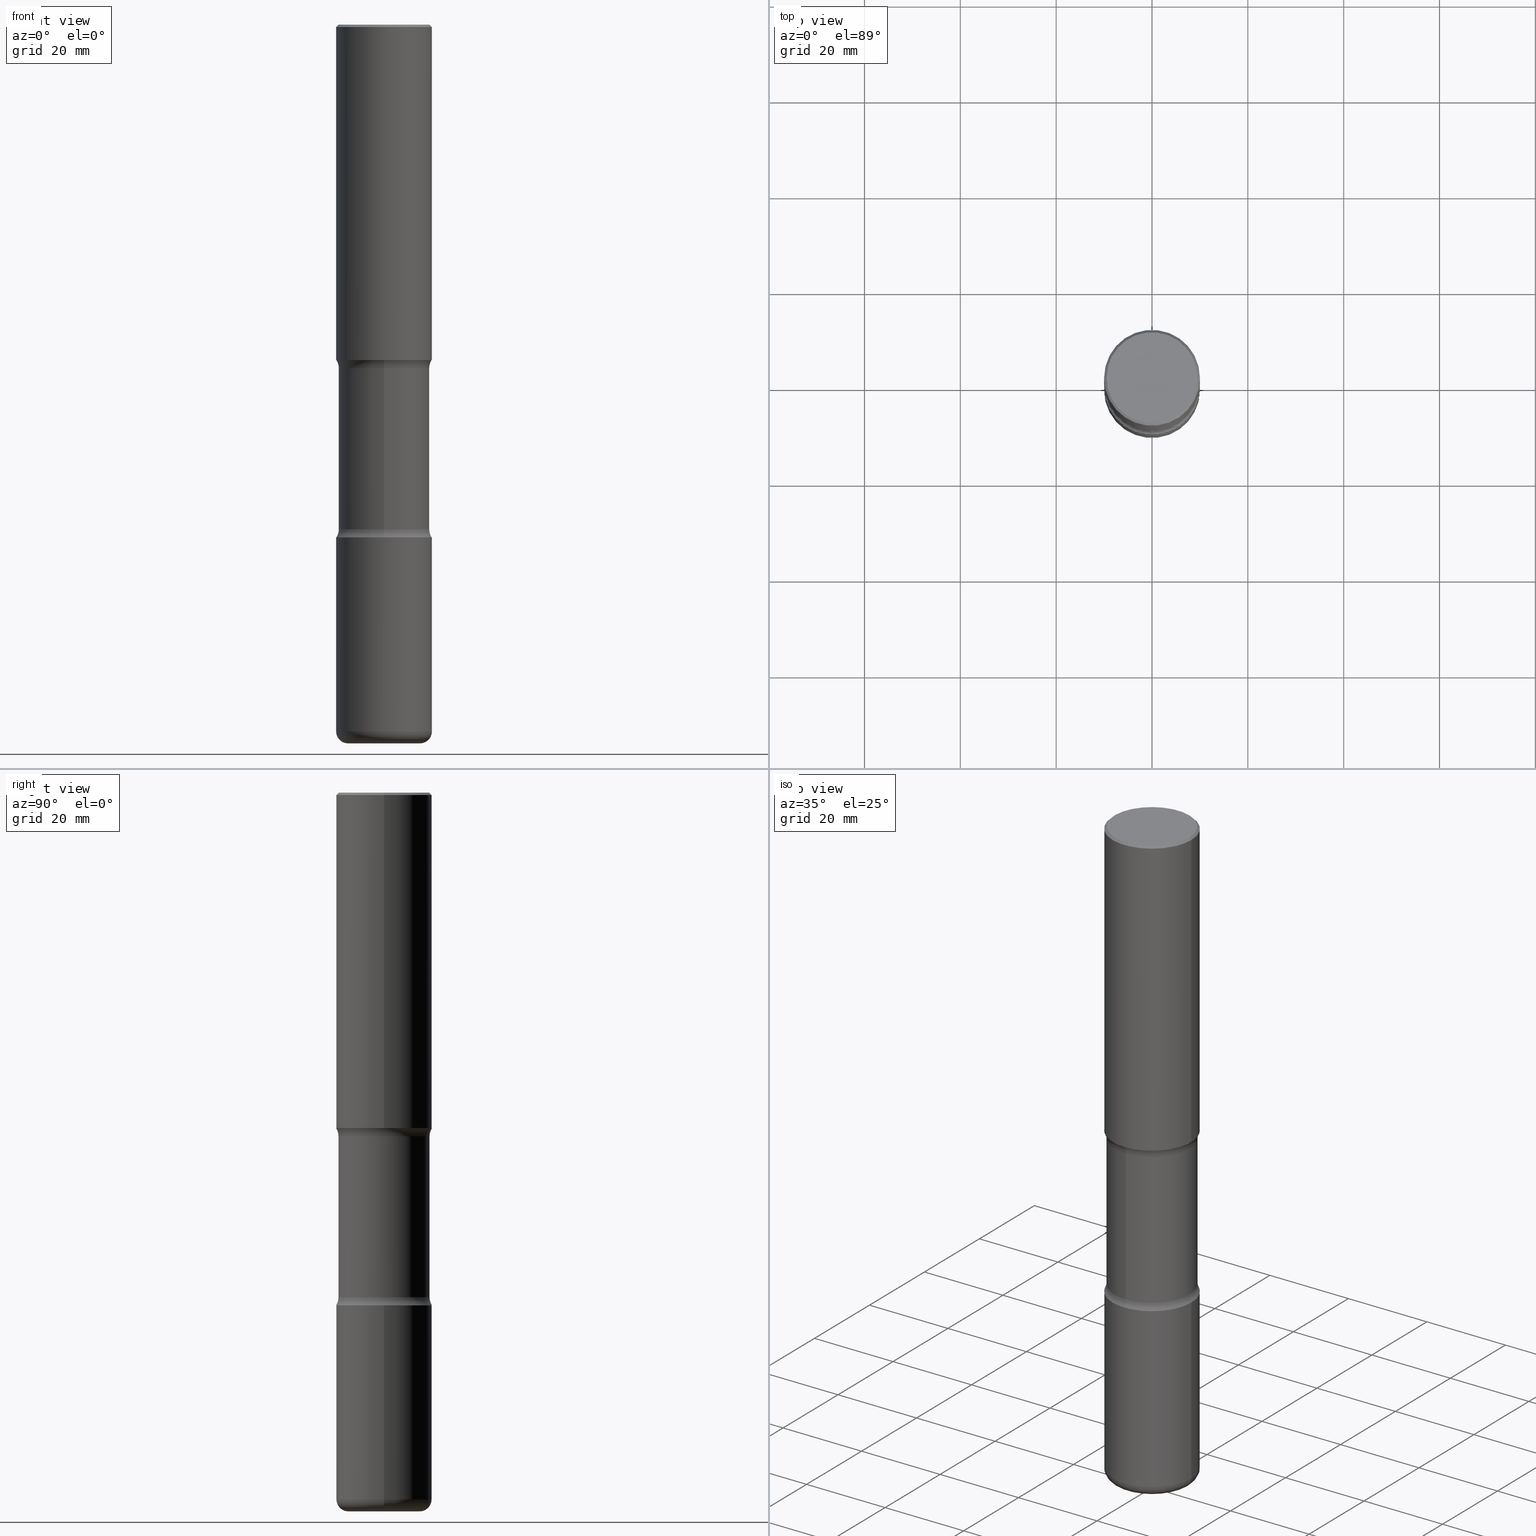
[diagram: canonical four-view strip — front | top / right | iso, engineering-drawing reading convention]
A machine part, canonical four-view strip (front | top / right | iso — engineering-drawing reading convention). The complete STEP part file that produces these views, byte-faithful:
ISO-10303-21;
HEADER;
FILE_DESCRIPTION (( 'STEP AP203' ),
    '1' );
FILE_NAME ('47754.STEP',
    '2024-03-02T08:34:32',
    ( '' ),
    ( '' ),
    'SwSTEP 2.0',
    'SolidWorks 2023',
    '' );
FILE_SCHEMA (( 'CONFIG_CONTROL_DESIGN' ));
ENDSEC;

DATA;
#1 = DIRECTION ( 'NONE',  ( 1.000000000000000000, 0.000000000000000000, 0.000000000000000000 ) ) ;
#2 = AXIS2_PLACEMENT_3D ( 'NONE', #109, #273, #453 ) ;
#3 = CARTESIAN_POINT ( 'NONE',  ( 1.013706345712835491E-28, -1.447304001658688186E-14, -4.145243411606583273 ) ) ;
#4 = LOCAL_TIME ( 3, 34, 32.00000000000000000, #137 ) ;
#5 = CARTESIAN_POINT ( 'NONE',  ( 0.000000000000000000, 0.000000000000000000, 0.000000000000000000 ) ) ;
#6 = ORIENTED_EDGE ( 'NONE', *, *, #50, .T. ) ;
#7 = MANIFOLD_SOLID_BREP ( 'Body-Move/Copy2[4]', #398 ) ;
#8 = DIRECTION ( 'NONE',  ( 2.499563752616943710E-29, -3.414014296659653741E-15, -1.000000000000000000 ) ) ;
#9 = ORIENTED_EDGE ( 'NONE', *, *, #425, .T. ) ;
#10 = DIRECTION ( 'NONE',  ( -2.445468806185136597E-29, 3.491481338843145583E-15, 1.000000000000000000 ) ) ;
#11 = FACE_OUTER_BOUND ( 'NONE', #239, .T. ) ;
#12 = CARTESIAN_POINT ( 'NONE',  ( -0.3937000000000008271, -1.747797453210850398E-14, -5.807099999999998374 ) ) ;
#13 = FACE_OUTER_BOUND ( 'NONE', #502, .T. ) ;
#14 = AXIS2_PLACEMENT_3D ( 'NONE', #162, #290, #469 ) ;
#15 = MANIFOLD_SOLID_BREP ( 'Body-Move/Copy2[1]', #244 ) ;
#16 = AXIS2_PLACEMENT_3D ( 'NONE', #368, #276, #539 ) ;
#17 = DIRECTION ( 'NONE',  ( 6.982962677686265922E-15, 1.000000000000000000, -2.775563112689113540E-15 ) ) ;
#18 = LINE ( 'NONE', #283, #190 ) ;
#19 = PRODUCT_DEFINITION ( 'UNKNOWN', '', #210, #214 ) ;
#20 = FACE_OUTER_BOUND ( 'NONE', #331, .T. ) ;
#21 = CC_DESIGN_PERSON_AND_ORGANIZATION_ASSIGNMENT ( #55, #211, ( #210 ) ) ;
#22 = FACE_OUTER_BOUND ( 'NONE', #335, .T. ) ;
#23 = AXIS2_PLACEMENT_3D ( 'NONE', #269, #218, #287 ) ;
#24 = TOROIDAL_SURFACE ( 'NONE', #277, 0.2953000000000005620, 0.09840000000000062585 ) ;
#25 = DIRECTION ( 'NONE',  ( -2.445468806185136597E-29, 3.491481338843145583E-15, 1.000000000000000000 ) ) ;
#26 = FACE_OUTER_BOUND ( 'NONE', #540, .T. ) ;
#27 = ORIENTED_EDGE ( 'NONE', *, *, #410, .T. ) ;
#28 = DIRECTION ( 'NONE',  ( 6.860497997771527618E-15, 1.000000000000000000, 0.000000000000000000 ) ) ;
#29 = DIRECTION ( 'NONE',  ( 6.982962677686265922E-15, 1.000000000000000000, -2.775563112689114723E-15 ) ) ;
#30 = EDGE_CURVE ( 'NONE', #47, #74, #317, .T. ) ;
#31 = DIRECTION ( 'NONE',  ( -1.000000000000000000, 6.982962677686266711E-15, 0.000000000000000000 ) ) ;
#32 = EDGE_LOOP ( 'NONE', ( #461, #297 ) ) ;
#33 = AXIS2_PLACEMENT_3D ( 'NONE', #248, #510, #422 ) ;
#34 = AXIS2_PLACEMENT_3D ( 'NONE', #79, #160, #421 ) ;
#35 = CARTESIAN_POINT ( 'NONE',  ( 0.000000000000000000, 0.000000000000000000, 0.000000000000000000 ) ) ;
#36 = FACE_OUTER_BOUND ( 'NONE', #207, .T. ) ;
#37 = CARTESIAN_POINT ( 'NONE',  ( 1.030178189293550378E-28, -1.470821428801063089E-14, -4.212599999999998346 ) ) ;
#38 = DIRECTION ( 'NONE',  ( 1.000000000000000000, -6.982962677686266711E-15, 4.876176775795935793E-29 ) ) ;
#39 = EDGE_LOOP ( 'NONE', ( #514, #358 ) ) ;
#40 = CARTESIAN_POINT ( 'NONE',  ( 1.013341980608738414E-28, -1.447825793226129018E-14, -4.145243411606583273 ) ) ;
#41 = APPLICATION_CONTEXT ( 'configuration controlled 3d designs of mechanical parts and assemblies' ) ;
#42 = ORIENTED_EDGE ( 'NONE', *, *, #519, .T. ) ;
#43 = ORIENTED_EDGE ( 'NONE', *, *, #105, .F. ) ;
#44 = CARTESIAN_POINT ( 'NONE',  ( -2.087702828670439639E-46, 2.980686340760894400E-32, 8.537024980200822558E-18 ) ) ;
#45 = CALENDAR_DATE ( 2024, 2, 3 ) ;
#46 = AXIS2_PLACEMENT_3D ( 'NONE', #412, #403, #182 ) ;
#47 = VERTEX_POINT ( 'NONE', #451 ) ;
#48 = ORIENTED_EDGE ( 'NONE', *, *, #536, .F. ) ;
#49 = PERSON_AND_ORGANIZATION ( #393, #492 ) ;
#50 = EDGE_CURVE ( 'NONE', #549, #230, #387, .T. ) ;
#51 = DIRECTION ( 'NONE',  ( 6.982962677686266711E-15, 1.000000000000000000, -2.921762560068729411E-15 ) ) ;
#52 = EDGE_LOOP ( 'NONE', ( #546, #126, #188, #158 ) ) ;
#53 = DIRECTION ( 'NONE',  ( 0.000000000000000000, 0.000000000000000000, 1.000000000000000000 ) ) ;
#54 = CARTESIAN_POINT ( 'NONE',  ( 6.660667374498401538E-29, -9.735019662066511300E-15, -2.755899999999998240 ) ) ;
#55 = PERSON_AND_ORGANIZATION ( #393, #492 ) ;
#56 = CIRCLE ( 'NONE', #488, 0.3937000000000004385 ) ;
#57 = LOCAL_TIME ( 3, 34, 32.00000000000000000, #299 ) ;
#58 = VERTEX_POINT ( 'NONE', #404 ) ;
#59 = ADVANCED_FACE ( 'NONE', ( #22 ), #106, .F. ) ;
#60 = CYLINDRICAL_SURFACE ( 'NONE', #90, 0.3937000000000001054 ) ;
#61 = DIRECTION ( 'NONE',  ( 1.000000000000000000, -6.982962677686265133E-15, 0.000000000000000000 ) ) ;
#62 = DIRECTION ( 'NONE',  ( -2.445468806185136597E-29, 3.491481338843145583E-15, 1.000000000000000000 ) ) ;
#63 = ADVANCED_FACE ( 'NONE', ( #26 ), #281, .F. ) ;
#64 = CIRCLE ( 'NONE', #71, 0.3937000000000004940 ) ;
#65 = CARTESIAN_POINT ( 'NONE',  ( 3.484498376165515577E-15, 0.4989999999999901736, -2.823256588393415534 ) ) ;
#66 = EDGE_CURVE ( 'NONE', #280, #487, #275, .T. ) ;
#67 = CARTESIAN_POINT ( 'NONE',  ( 0.3936999999999999389, -2.770807688499514945E-15, -0.02000000000000010103 ) ) ;
#68 = FACE_OUTER_BOUND ( 'NONE', #373, .T. ) ;
#69 = ORIENTED_EDGE ( 'NONE', *, *, #419, .F. ) ;
#70 = CIRCLE ( 'NONE', #2, 0.3937000000000002164 ) ;
#71 = AXIS2_PLACEMENT_3D ( 'NONE', #78, #415, #285 ) ;
#72 = ADVANCED_FACE ( 'NONE', ( #498 ), #270, .T. ) ;
#73 = PLANE ( 'NONE',  #16 ) ;
#74 = VERTEX_POINT ( 'NONE', #535 ) ;
#75 = CARTESIAN_POINT ( 'NONE',  ( 4.890937612370298557E-31, -6.982962677686327354E-17, -0.02000000000000010103 ) ) ;
#76 = CARTESIAN_POINT ( 'NONE',  ( 0.3937000000000008271, -2.302457368900111381E-14, -5.807099999999998374 ) ) ;
#77 = ORIENTED_EDGE ( 'NONE', *, *, #105, .T. ) ;
#78 = CARTESIAN_POINT ( 'NONE',  ( 1.420108190439770332E-28, -2.027538128279602429E-14, -5.807099999999998374 ) ) ;
#79 = CARTESIAN_POINT ( 'NONE',  ( 1.013706345712835491E-28, -1.447304001658688186E-14, -4.145243411606583273 ) ) ;
#80 = DIRECTION ( 'NONE',  ( -2.445468806185136597E-29, 3.491481338843145583E-15, 1.000000000000000000 ) ) ;
#81 = ORIENTED_EDGE ( 'NONE', *, *, #312, .T. ) ;
#82 = AXIS2_PLACEMENT_3D ( 'NONE', #144, #314, #491 ) ;
#83 = CARTESIAN_POINT ( 'NONE',  ( 4.890937612370298557E-31, -6.982962677686327354E-17, -0.02000000000000010103 ) ) ;
#84 = CARTESIAN_POINT ( 'NONE',  ( 0.2953000000000005620, -2.268101192525895245E-14, -5.905499999999999972 ) ) ;
#85 = CARTESIAN_POINT ( 'NONE',  ( 2.611628041454766160E-15, 0.3739999999999856772, -4.145243411606584161 ) ) ;
#86 = ORIENTED_EDGE ( 'NONE', *, *, #541, .T. ) ;
#87 = ADVANCED_FACE ( 'NONE', ( #68 ), #438, .T. ) ;
#88 = EDGE_CURVE ( 'NONE', #74, #47, #70, .T. ) ;
#89 = PERSON_AND_ORGANIZATION ( #393, #492 ) ;
#90 = AXIS2_PLACEMENT_3D ( 'NONE', #444, #62, #147 ) ;
#91 = CIRCLE ( 'NONE', #257, 0.3740000000000001656 ) ;
#92 = CALENDAR_DATE ( 2024, 2, 3 ) ;
#93 = EDGE_LOOP ( 'NONE', ( #396, #258, #349, #48 ) ) ;
#94 = APPLICATION_PROTOCOL_DEFINITION ( 'international standard', 'config_control_design', 1994, #41 ) ;
#95 = CARTESIAN_POINT ( 'NONE',  ( -0.3936999999999999389, 2.679362779428219524E-15, -0.02000000000000010103 ) ) ;
#96 = DIRECTION ( 'NONE',  ( 1.000000000000000000, -6.982962677686266711E-15, 4.876212485538976239E-29 ) ) ;
#97 = AXIS2_PLACEMENT_3D ( 'NONE', #212, #181, #17 ) ;
#98 = LINE ( 'NONE', #235, #499 ) ;
#99 = CC_DESIGN_APPROVAL ( #153, ( #210 ) ) ;
#100 = ORIENTED_EDGE ( 'NONE', *, *, #519, .F. ) ;
#101 = ORIENTED_EDGE ( 'NONE', *, *, #208, .T. ) ;
#102 = DIRECTION ( 'NONE',  ( 2.499563752616943710E-29, -3.414014296659653741E-15, -1.000000000000000000 ) ) ;
#103 = DIRECTION ( 'NONE',  ( 6.982962677686266711E-15, 1.000000000000000000, -2.921762560068729411E-15 ) ) ;
#104 = CYLINDRICAL_SURFACE ( 'NONE', #455, 0.3740000000000001656 ) ;
#105 = EDGE_CURVE ( 'NONE', #115, #138, #427, .T. ) ;
#106 = TOROIDAL_SURFACE ( 'NONE', #141, 0.4990000000000000546, 0.1249999999999998612 ) ;
#107 = AXIS2_PLACEMENT_3D ( 'NONE', #516, #53, #1 ) ;
#108 = CARTESIAN_POINT ( 'NONE',  ( 6.739467482965614869E-29, -9.622173421717819657E-15, -2.755899999999998240 ) ) ;
#109 = CARTESIAN_POINT ( 'NONE',  ( 6.739467482965614869E-29, -9.622173421717819657E-15, -2.755899999999998240 ) ) ;
#110 = AXIS2_PLACEMENT_3D ( 'NONE', #75, #151, #495 ) ;
#111 = ORIENTED_EDGE ( 'NONE', *, *, #130, .T. ) ;
#112 = AXIS2_PLACEMENT_3D ( 'NONE', #189, #152, #29 ) ;
#113 = ADVANCED_FACE ( 'NONE', ( #11 ), #436, .T. ) ;
#114 = CARTESIAN_POINT ( 'NONE',  ( 0.3936999999999999389, -2.770807688499514945E-15, -0.02000000000000010103 ) ) ;
#115 = VERTEX_POINT ( 'NONE', #338 ) ;
#116 = CARTESIAN_POINT ( 'NONE',  ( 0.3937000000000002720, -1.745740669421571411E-14, -4.212599999999998346 ) ) ;
#117 = VERTEX_POINT ( 'NONE', #85 ) ;
#118 = DIRECTION ( 'NONE',  ( -2.445468806185136877E-29, 3.491481338843145188E-15, 1.000000000000000000 ) ) ;
#119 = CC_DESIGN_DATE_AND_TIME_ASSIGNMENT ( #348, #295, ( #19 ) ) ;
#120 = ADVANCED_FACE ( 'NONE', ( #238 ), #60, .T. ) ;
#121 = PLANE ( 'NONE',  #23 ) ;
#122 = ORIENTED_EDGE ( 'NONE', *, *, #321, .F. ) ;
#123 = CLOSED_SHELL ( 'NONE', ( #113, #87, #503, #186, #486, #120 ) ) ;
#124 = SECURITY_CLASSIFICATION ( '', '', #177 ) ;
#125 = APPROVAL_ROLE ( '' ) ;
#126 = ORIENTED_EDGE ( 'NONE', *, *, #536, .T. ) ;
#127 = PERSON_AND_ORGANIZATION_ROLE ( 'creator' ) ;
#128 = PRODUCT_DEFINITION_SHAPE ( 'NONE', 'NONE',  #19 ) ;
#129 = ORIENTED_EDGE ( 'NONE', *, *, #432, .F. ) ;
#130 = EDGE_CURVE ( 'NONE', #230, #441, #263, .T. ) ;
#131 = COORDINATED_UNIVERSAL_TIME_OFFSET ( 5, 0, .BEHIND. ) ;
#132 = DIRECTION ( 'NONE',  ( -2.445468806185136597E-29, 3.491481338843145583E-15, 1.000000000000000000 ) ) ;
#133 = AXIS2_PLACEMENT_3D ( 'NONE', #315, #494, #324 ) ;
#134 = AXIS2_PLACEMENT_3D ( 'NONE', #226, #454, #228 ) ;
#135 = APPROVAL_ROLE ( '' ) ;
#136 = DIRECTION ( 'NONE',  ( 6.982962677686265922E-15, 1.000000000000000000, -3.414014296659653741E-15 ) ) ;
#137 = COORDINATED_UNIVERSAL_TIME_OFFSET ( 5, 0, .BEHIND. ) ;
#138 = VERTEX_POINT ( 'NONE', #316 ) ;
#139 = ORIENTED_EDGE ( 'NONE', *, *, #50, .F. ) ;
#140 = ADVANCED_FACE ( 'NONE', ( #395 ), #104, .T. ) ;
#141 = AXIS2_PLACEMENT_3D ( 'NONE', #340, #8, #332 ) ;
#142 = AXIS2_PLACEMENT_3D ( 'NONE', #40, #552, #371 ) ;
#143 = DIRECTION ( 'NONE',  ( -6.982962677686266711E-15, -1.000000000000000000, 3.491481338843145583E-15 ) ) ;
#144 = CARTESIAN_POINT ( 'NONE',  ( 6.856494937320590076E-29, -9.925643892983175518E-15, -2.823256588393414201 ) ) ;
#145 = DIRECTION ( 'NONE',  ( 2.499563752616943710E-29, -3.414014296659653741E-15, -1.000000000000000000 ) ) ;
#146 = ADVANCED_FACE ( 'NONE', ( #20 ), #306, .T. ) ;
#147 = DIRECTION ( 'NONE',  ( 1.000000000000000000, -6.982962677686266711E-15, 4.876176775795935793E-29 ) ) ;
#148 = ADVANCED_BREP_SHAPE_REPRESENTATION ( '47754', ( #15, #184, #7, #107 ), #399 ) ;
#149 = CONICAL_SURFACE ( 'NONE', #525, 0.3936999999999999389, 0.7853981633974471688 ) ;
#150 = DIRECTION ( 'NONE',  ( -2.445468806185136877E-29, 3.491481338843145188E-15, 1.000000000000000000 ) ) ;
#151 = DIRECTION ( 'NONE',  ( 2.445468806185136597E-29, -3.491481338843145583E-15, -1.000000000000000000 ) ) ;
#152 = DIRECTION ( 'NONE',  ( 2.499563752616943710E-29, -3.414014296659653741E-15, -1.000000000000000000 ) ) ;
#153 = APPROVAL ( #242, 'UNSPECIFIED' ) ;
#154 = EDGE_CURVE ( 'NONE', #418, #549, #200, .T. ) ;
#155 = ORIENTED_EDGE ( 'NONE', *, *, #88, .T. ) ;
#156 = DIRECTION ( 'NONE',  ( -1.000000000000000000, 6.982962677686265922E-15, -4.883557194083112340E-29 ) ) ;
#157 = TOROIDAL_SURFACE ( 'NONE', #301, 0.4990000000000002212, 0.1249999999999998751 ) ;
#158 = ORIENTED_EDGE ( 'NONE', *, *, #208, .F. ) ;
#159 = AXIS2_PLACEMENT_3D ( 'NONE', #365, #132, #179 ) ;
#160 = DIRECTION ( 'NONE',  ( 2.499563752616943710E-29, -3.414014296659653741E-15, -1.000000000000000000 ) ) ;
#161 = PLANE ( 'NONE',  #457 ) ;
#162 = CARTESIAN_POINT ( 'NONE',  ( 6.829029461346524548E-29, -9.964976017815853586E-15, -2.823256588393414646 ) ) ;
#163 = ORIENTED_EDGE ( 'NONE', *, *, #350, .F. ) ;
#164 = EDGE_CURVE ( 'NONE', #518, #227, #288, .T. ) ;
#165 = DIRECTION ( 'NONE',  ( -6.982962677686264344E-15, -1.000000000000000000, 0.000000000000000000 ) ) ;
#166 = EDGE_LOOP ( 'NONE', ( #284, #209 ) ) ;
#167 = AXIS2_PLACEMENT_3D ( 'NONE', #108, #352, #136 ) ;
#168 = VECTOR ( 'NONE', #150, 39.37007874015748143 ) ;
#169 = MECHANICAL_CONTEXT ( 'NONE', #231, 'mechanical' ) ;
#170 = FACE_OUTER_BOUND ( 'NONE', #505, .T. ) ;
#171 = PERSON_AND_ORGANIZATION_ROLE ( 'classification_officer' ) ;
#172 = CIRCLE ( 'NONE', #142, 0.3740000000000001656 ) ;
#173 = SHAPE_DEFINITION_REPRESENTATION ( #128, #148 ) ;
#174 = EDGE_LOOP ( 'NONE', ( #291, #409, #259, #382 ) ) ;
#175 = APPROVAL ( #357, 'UNSPECIFIED' ) ;
#176 = ADVANCED_FACE ( 'NONE', ( #513 ), #157, .F. ) ;
#177 = SECURITY_CLASSIFICATION_LEVEL ( 'unclassified' ) ;
#178 = CARTESIAN_POINT ( 'NONE',  ( 1.453329336974072664E-28, -2.048779909082575425E-14, -5.905499999999998195 ) ) ;
#179 = DIRECTION ( 'NONE',  ( 1.000000000000000000, -6.982962677686269077E-15, 0.000000000000000000 ) ) ;
#180 = AXIS2_PLACEMENT_3D ( 'NONE', #471, #240, #51 ) ;
#181 = DIRECTION ( 'NONE',  ( 2.499563752616943710E-29, -3.414014296659653741E-15, -1.000000000000000000 ) ) ;
#182 = DIRECTION ( 'NONE',  ( 1.000000000000000000, -6.982962677686266711E-15, 4.876176775795935793E-29 ) ) ;
#183 = CIRCLE ( 'NONE', #529, 0.3740000000000001656 ) ;
#184 = MANIFOLD_SOLID_BREP ( 'Body-Move/Copy2[2]', #123 ) ;
#185 = DIRECTION ( 'NONE',  ( 2.499563752616943710E-29, -3.414014296659653741E-15, -1.000000000000000000 ) ) ;
#186 = ADVANCED_FACE ( 'NONE', ( #170 ), #300, .F. ) ;
#187 = ORIENTED_EDGE ( 'NONE', *, *, #278, .T. ) ;
#188 = ORIENTED_EDGE ( 'NONE', *, *, #440, .T. ) ;
#189 = CARTESIAN_POINT ( 'NONE',  ( 1.030178189293550378E-28, -1.470821428801063089E-14, -4.212599999999998346 ) ) ;
#190 = VECTOR ( 'NONE', #506, 39.37007874015748143 ) ;
#191 = EDGE_CURVE ( 'NONE', #74, #280, #463, .T. ) ;
#192 = DIRECTION ( 'NONE',  ( -2.445468806185136877E-29, 3.491481338843145188E-15, 1.000000000000000000 ) ) ;
#193 = CARTESIAN_POINT ( 'NONE',  ( 3.484498376165549498E-15, 0.4989999999999857327, -4.145243411606585049 ) ) ;
#194 = EDGE_LOOP ( 'NONE', ( #521, #483, #294, #497 ) ) ;
#195 = DIRECTION ( 'NONE',  ( -2.445468806185136597E-29, 3.491481338843145583E-15, 1.000000000000000000 ) ) ;
#196 = CARTESIAN_POINT ( 'NONE',  ( 1.444171603492632270E-28, -2.061894304653819197E-14, -5.905499999999999972 ) ) ;
#197 = ORIENTED_EDGE ( 'NONE', *, *, #304, .T. ) ;
#198 = CARTESIAN_POINT ( 'NONE',  ( 1.013341980608738414E-28, -1.447825793226129018E-14, -4.145243411606583273 ) ) ;
#199 = DIRECTION ( 'NONE',  ( -2.445468806185136597E-29, 3.491481338843145583E-15, 1.000000000000000000 ) ) ;
#200 = CIRCLE ( 'NONE', #14, 0.3740000000000001656 ) ;
#201 = AXIS2_PLACEMENT_3D ( 'NONE', #468, #282, #464 ) ;
#202 = APPROVAL_ROLE ( '' ) ;
#203 = EDGE_CURVE ( 'NONE', #390, #256, #370, .T. ) ;
#204 = ORIENTED_EDGE ( 'NONE', *, *, #203, .T. ) ;
#205 = CALENDAR_DATE ( 2024, 2, 3 ) ;
#206 = APPLICATION_PROTOCOL_DEFINITION ( 'international standard', 'config_control_design', 1994, #231 ) ;
#207 = EDGE_LOOP ( 'NONE', ( #100, #81, #260, #392 ) ) ;
#208 = EDGE_CURVE ( 'NONE', #359, #508, #532, .T. ) ;
#209 = ORIENTED_EDGE ( 'NONE', *, *, #278, .F. ) ;
#210 = PRODUCT_DEFINITION_FORMATION_WITH_SPECIFIED_SOURCE ( 'ANY', '', #435, .NOT_KNOWN. ) ;
#211 = PERSON_AND_ORGANIZATION_ROLE ( 'creator' ) ;
#212 = CARTESIAN_POINT ( 'NONE',  ( 6.660667374498401538E-29, -9.735019662066511300E-15, -2.755899999999998240 ) ) ;
#213 = CARTESIAN_POINT ( 'NONE',  ( 2.611628041454809941E-15, 0.3739999999999796820, -5.905499999999999972 ) ) ;
#214 = DESIGN_CONTEXT ( 'detailed design', #41, 'design' ) ;
#215 = EDGE_CURVE ( 'NONE', #418, #58, #18, .T. ) ;
#216 = CIRCLE ( 'NONE', #134, 0.2953000000000005620 ) ;
#217 = DIRECTION ( 'NONE',  ( -1.000000000000000000, 6.982962677686265922E-15, -4.883557194083112340E-29 ) ) ;
#218 = DIRECTION ( 'NONE',  ( 2.438088387897960049E-29, -3.491481338843145188E-15, -1.000000000000000000 ) ) ;
#219 = CARTESIAN_POINT ( 'NONE',  ( 6.829029461346524548E-29, -9.964976017815853586E-15, -2.823256588393414646 ) ) ;
#220 = DIRECTION ( 'NONE',  ( 0.7071067811865466846, -7.319954787623252890E-15, -0.7071067811865483499 ) ) ;
#221 = ADVANCED_FACE ( 'NONE', ( #553 ), #121, .T. ) ;
#222 = CARTESIAN_POINT ( 'NONE',  ( 1.030178189293550378E-28, -1.470821428801063089E-14, -4.212599999999998346 ) ) ;
#223 = VECTOR ( 'NONE', #336, 39.37007874015748143 ) ;
#224 = LENGTH_MEASURE_WITH_UNIT ( LENGTH_MEASURE( 0.02539999999999999897 ), #375 );
#225 = APPROVAL_PERSON_ORGANIZATION ( #305, #175, #125 ) ;
#226 = CARTESIAN_POINT ( 'NONE',  ( 1.444171603492632270E-28, -2.061894304653819197E-14, -5.905499999999999972 ) ) ;
#227 = VERTEX_POINT ( 'NONE', #84 ) ;
#228 = DIRECTION ( 'NONE',  ( 1.000000000000000000, -6.982962677686270655E-15, 0.000000000000000000 ) ) ;
#229 = EDGE_CURVE ( 'NONE', #256, #487, #517, .T. ) ;
#230 = VERTEX_POINT ( 'NONE', #361 ) ;
#231 = APPLICATION_CONTEXT ( 'configuration controlled 3d designs of mechanical parts and assemblies' ) ;
#232 = DIRECTION ( 'NONE',  ( 2.499563752616943710E-29, -3.414014296659653741E-15, -1.000000000000000000 ) ) ;
#233 = AXIS2_PLACEMENT_3D ( 'NONE', #456, #462, #406 ) ;
#234 = VERTEX_POINT ( 'NONE', #12 ) ;
#235 = CARTESIAN_POINT ( 'NONE',  ( -0.3936999999999999389, 2.679362779428219524E-15, -0.02000000000000010103 ) ) ;
#236 = DIRECTION ( 'NONE',  ( -1.000000000000000000, 7.105427357600994759E-15, 0.000000000000000000 ) ) ;
#237 = ORIENTED_EDGE ( 'NONE', *, *, #229, .F. ) ;
#238 = FACE_OUTER_BOUND ( 'NONE', #323, .T. ) ;
#239 = EDGE_LOOP ( 'NONE', ( #475, #424, #129, #559 ) ) ;
#240 = DIRECTION ( 'NONE',  ( 2.499563752616943710E-29, -3.414014296659653741E-15, -1.000000000000000000 ) ) ;
#241 = ADVANCED_FACE ( 'NONE', ( #445 ), #353, .T. ) ;
#242 = APPROVAL_STATUS ( 'not_yet_approved' ) ;
#243 = ORIENTED_EDGE ( 'NONE', *, *, #425, .F. ) ;
#244 = CLOSED_SHELL ( 'NONE', ( #146, #531, #221, #241, #72, #63 ) ) ;
#245 = CIRCLE ( 'NONE', #311, 0.3936999999999999389 ) ;
#246 = ORIENTED_EDGE ( 'NONE', *, *, #203, .F. ) ;
#247 = PERSON_AND_ORGANIZATION ( #393, #492 ) ;
#248 = CARTESIAN_POINT ( 'NONE',  ( 2.609533152651356620E-15, 0.3736999999999999211, -1.300498063835582814E-15 ) ) ;
#249 = DATE_AND_TIME ( #45, #4 ) ;
#250 = ADVANCED_FACE ( 'NONE', ( #13 ), #344, .F. ) ;
#251 = ORIENTED_EDGE ( 'NONE', *, *, #312, .F. ) ;
#252 = CARTESIAN_POINT ( 'NONE',  ( -0.3736999999999999211, 2.644447966039788269E-15, 8.537024980182450727E-18 ) ) ;
#253 = PERSON_AND_ORGANIZATION_ROLE ( 'design_owner' ) ;
#254 = ORIENTED_EDGE ( 'NONE', *, *, #380, .T. ) ;
#255 = AXIS2_PLACEMENT_3D ( 'NONE', #44, #199, #96 ) ;
#256 = VERTEX_POINT ( 'NONE', #400 ) ;
#257 = AXIS2_PLACEMENT_3D ( 'NONE', #219, #232, #501 ) ;
#258 = ORIENTED_EDGE ( 'NONE', *, *, #164, .T. ) ;
#259 = ORIENTED_EDGE ( 'NONE', *, *, #343, .F. ) ;
#260 = ORIENTED_EDGE ( 'NONE', *, *, #528, .T. ) ;
#261 = PRODUCT_RELATED_PRODUCT_CATEGORY ( 'detail', '', ( #435 ) ) ;
#262 = DIRECTION ( 'NONE',  ( 6.860497997771531562E-15, 1.000000000000000000, 0.000000000000000000 ) ) ;
#263 = CIRCLE ( 'NONE', #97, 0.3937000000000004385 ) ;
#264 = DIRECTION ( 'NONE',  ( -2.445468806185136597E-29, 3.491481338843145583E-15, 1.000000000000000000 ) ) ;
#265 = DIRECTION ( 'NONE',  ( 2.499563752616943710E-29, -3.414014296659653741E-15, -1.000000000000000000 ) ) ;
#266 = PLANE ( 'NONE',  #167 ) ;
#267 = AXIS2_PLACEMENT_3D ( 'NONE', #193, #156, #165 ) ;
#268 = APPROVAL ( #520, 'UNSPECIFIED' ) ;
#269 = CARTESIAN_POINT ( 'NONE',  ( -8.181060289173079042E-30, -4.247187677709596397E-14, -5.905499999999998195 ) ) ;
#270 = CYLINDRICAL_SURFACE ( 'NONE', #46, 0.3937000000000003830 ) ;
#271 = CC_DESIGN_PERSON_AND_ORGANIZATION_ASSIGNMENT ( #247, #431, ( #210 ) ) ;
#272 = ADVANCED_FACE ( 'NONE', ( #307 ), #266, .F. ) ;
#273 = DIRECTION ( 'NONE',  ( -2.445468806185136597E-29, 3.491481338843145583E-15, 1.000000000000000000 ) ) ;
#274 = CARTESIAN_POINT ( 'NONE',  ( -2.087702828670439639E-46, 2.980686340760894400E-32, 8.537024980200822558E-18 ) ) ;
#275 = CIRCLE ( 'NONE', #542, 0.3936999999999999389 ) ;
#276 = DIRECTION ( 'NONE',  ( -2.438088387897960049E-29, 3.491481338843145188E-15, 1.000000000000000000 ) ) ;
#277 = AXIS2_PLACEMENT_3D ( 'NONE', #512, #195, #548 ) ;
#278 = EDGE_CURVE ( 'NONE', #441, #230, #56, .T. ) ;
#279 = DIRECTION ( 'NONE',  ( 2.445468806185136597E-29, -3.491481338843145583E-15, -1.000000000000000000 ) ) ;
#280 = VERTEX_POINT ( 'NONE', #95 ) ;
#281 = PLANE ( 'NONE',  #233 ) ;
#282 = DIRECTION ( 'NONE',  ( -2.445468806185136597E-29, 3.491481338843145583E-15, 1.000000000000000000 ) ) ;
#283 = CARTESIAN_POINT ( 'NONE',  ( -2.565826251166408560E-15, -0.3740000000000206493, -5.905499999999997307 ) ) ;
#284 = ORIENTED_EDGE ( 'NONE', *, *, #130, .F. ) ;
#285 = DIRECTION ( 'NONE',  ( 1.000000000000000000, -6.982962677686269866E-15, 0.000000000000000000 ) ) ;
#286 = CARTESIAN_POINT ( 'NONE',  ( -0.2953000000000005620, -1.799934243997356436E-14, -5.905499999999999972 ) ) ;
#287 = DIRECTION ( 'NONE',  ( -1.000000000000000000, 6.982962677686265922E-15, -4.876176775795935793E-29 ) ) ;
#288 = CIRCLE ( 'NONE', #448, 0.2953000000000005620 ) ;
#289 = APPROVAL_PERSON_ORGANIZATION ( #89, #153, #202 ) ;
#290 = DIRECTION ( 'NONE',  ( 2.499563752616943710E-29, -3.414014296659653741E-15, -1.000000000000000000 ) ) ;
#291 = ORIENTED_EDGE ( 'NONE', *, *, #478, .T. ) ;
#292 = DATE_AND_TIME ( #434, #556 ) ;
#293 = EDGE_LOOP ( 'NONE', ( #237, #246, #385, #459 ) ) ;
#294 = ORIENTED_EDGE ( 'NONE', *, *, #321, .T. ) ;
#295 = DATE_TIME_ROLE ( 'creation_date' ) ;
#296 = DIRECTION ( 'NONE',  ( 2.499563752616943710E-29, -3.414014296659653741E-15, -1.000000000000000000 ) ) ;
#297 = ORIENTED_EDGE ( 'NONE', *, *, #88, .F. ) ;
#298 = DIRECTION ( 'NONE',  ( 6.982962677686265922E-15, 1.000000000000000000, -2.775563112689114723E-15 ) ) ;
#299 = COORDINATED_UNIVERSAL_TIME_OFFSET ( 5, 0, .BEHIND. ) ;
#300 = PLANE ( 'NONE',  #33 ) ;
#301 = AXIS2_PLACEMENT_3D ( 'NONE', #3, #296, #426 ) ;
#302 = DIMENSIONAL_EXPONENTS ( 1.000000000000000000, 0.000000000000000000, 0.000000000000000000, 0.000000000000000000, 0.000000000000000000, 0.000000000000000000, 0.000000000000000000 ) ;
#303 = VECTOR ( 'NONE', #118, 39.37007874015748143 ) ;
#304 = EDGE_CURVE ( 'NONE', #47, #487, #341, .T. ) ;
#305 = PERSON_AND_ORGANIZATION ( #393, #492 ) ;
#306 = CYLINDRICAL_SURFACE ( 'NONE', #405, 0.3937000000000003830 ) ;
#307 = FACE_OUTER_BOUND ( 'NONE', #166, .T. ) ;
#308 = DIRECTION ( 'NONE',  ( 2.499563752616943710E-29, -3.414014296659653741E-15, -1.000000000000000000 ) ) ;
#309 = CARTESIAN_POINT ( 'NONE',  ( -3.423388500887925735E-15, -0.4990000000000099356, -2.823256588393412425 ) ) ;
#310 = ORIENTED_EDGE ( 'NONE', *, *, #394, .T. ) ;
#311 = AXIS2_PLACEMENT_3D ( 'NONE', #83, #329, #460 ) ;
#312 = EDGE_CURVE ( 'NONE', #138, #58, #555, .T. ) ;
#313 = CARTESIAN_POINT ( 'NONE',  ( 6.739467482965614869E-29, -9.622173421717819657E-15, -2.755899999999998240 ) ) ;
#314 = DIRECTION ( 'NONE',  ( 2.499563752616943710E-29, -3.414014296659653741E-15, -1.000000000000000000 ) ) ;
#315 = CARTESIAN_POINT ( 'NONE',  ( 1.030178189293550378E-28, -1.470821428801063089E-14, -4.212599999999998346 ) ) ;
#316 = CARTESIAN_POINT ( 'NONE',  ( -2.700978061722549884E-15, -0.3937000000000149269, -4.212599999999997458 ) ) ;
#317 = CIRCLE ( 'NONE', #447, 0.3937000000000002164 ) ;
#318 = CARTESIAN_POINT ( 'NONE',  ( 4.890937612370298557E-31, -6.982962677686327354E-17, -0.02000000000000010103 ) ) ;
#319 = CC_DESIGN_APPROVAL ( #268, ( #19 ) ) ;
#320 = CC_DESIGN_PERSON_AND_ORGANIZATION_ASSIGNMENT ( #437, #127, ( #19 ) ) ;
#321 = EDGE_CURVE ( 'NONE', #549, #117, #500, .T. ) ;
#322 = DIRECTION ( 'NONE',  ( 1.000000000000000000, -6.982962677686266711E-15, 0.000000000000000000 ) ) ;
#323 = EDGE_LOOP ( 'NONE', ( #356, #155, #197, #367 ) ) ;
#324 = DIRECTION ( 'NONE',  ( 1.000000000000000000, -6.982962677686269077E-15, 0.000000000000000000 ) ) ;
#325 = CARTESIAN_POINT ( 'NONE',  ( 0.3937000000000001054, -2.749192406205084005E-15, 1.919750796630860452E-29 ) ) ;
#326 =( NAMED_UNIT ( * ) PLANE_ANGLE_UNIT ( ) SI_UNIT ( $, .RADIAN. ) );
#327 = ORIENTED_EDGE ( 'NONE', *, *, #154, .F. ) ;
#328 = AXIS2_PLACEMENT_3D ( 'NONE', #222, #185, #298 ) ;
#329 = DIRECTION ( 'NONE',  ( -2.445468806185136597E-29, 3.491481338843145583E-15, 1.000000000000000000 ) ) ;
#330 = AXIS2_PLACEMENT_3D ( 'NONE', #274, #25, #411 ) ;
#331 = EDGE_LOOP ( 'NONE', ( #381, #310, #430, #526 ) ) ;
#332 = DIRECTION ( 'NONE',  ( 6.982962677686265922E-15, 1.000000000000000000, -3.414014296659653741E-15 ) ) ;
#333 = ADVANCED_FACE ( 'NONE', ( #420 ), #550, .T. ) ;
#334 = FACE_OUTER_BOUND ( 'NONE', #174, .T. ) ;
#335 = EDGE_LOOP ( 'NONE', ( #327, #27, #187, #139 ) ) ;
#336 = DIRECTION ( 'NONE',  ( -2.445468806185136877E-29, 3.491481338843145188E-15, 1.000000000000000000 ) ) ;
#337 = CARTESIAN_POINT ( 'NONE',  ( 2.611628041454733028E-15, 0.3739999999999901736, -2.823256588393415534 ) ) ;
#338 = CARTESIAN_POINT ( 'NONE',  ( 2.749192406205187346E-15, 0.3936999999999854505, -4.212600000000000122 ) ) ;
#339 = ORIENTED_EDGE ( 'NONE', *, *, #350, .T. ) ;
#340 = CARTESIAN_POINT ( 'NONE',  ( 6.856494937320590076E-29, -9.925643892983175518E-15, -2.823256588393414201 ) ) ;
#341 = LINE ( 'NONE', #325, #223 ) ;
#342 = CARTESIAN_POINT ( 'NONE',  ( -0.2953000000000005620, -1.817714858409644444E-14, -5.807099999999998374 ) ) ;
#343 = EDGE_CURVE ( 'NONE', #429, #234, #64, .T. ) ;
#344 = TOROIDAL_SURFACE ( 'NONE', #82, 0.4990000000000000546, 0.1249999999999998612 ) ;
#345 = CIRCLE ( 'NONE', #201, 0.3937000000000004940 ) ;
#346 = DIRECTION ( 'NONE',  ( 1.000000000000000000, -6.982962677686270655E-15, 0.000000000000000000 ) ) ;
#347 = ORIENTED_EDGE ( 'NONE', *, *, #215, .T. ) ;
#348 = DATE_AND_TIME ( #379, #467 ) ;
#349 = ORIENTED_EDGE ( 'NONE', *, *, #362, .T. ) ;
#350 = EDGE_CURVE ( 'NONE', #117, #58, #183, .T. ) ;
#351 = DATE_AND_TIME ( #92, #57 ) ;
#352 = DIRECTION ( 'NONE',  ( 2.499563752616943430E-29, -3.414014296659653741E-15, -1.000000000000000000 ) ) ;
#353 = TOROIDAL_SURFACE ( 'NONE', #414, 0.2953000000000005620, 0.09840000000000062585 ) ;
#354 = CIRCLE ( 'NONE', #267, 0.1249999999999999029 ) ;
#355 = DIRECTION ( 'NONE',  ( 1.000000000000000000, -6.982962677686267499E-15, 4.883557194083112901E-29 ) ) ;
#356 = ORIENTED_EDGE ( 'NONE', *, *, #191, .F. ) ;
#357 = APPROVAL_STATUS ( 'not_yet_approved' ) ;
#358 = ORIENTED_EDGE ( 'NONE', *, *, #164, .F. ) ;
#359 = VERTEX_POINT ( 'NONE', #402 ) ;
#360 = DIRECTION ( 'NONE',  ( 1.000000000000000000, -6.982962677686257244E-15, 0.000000000000000000 ) ) ;
#361 = CARTESIAN_POINT ( 'NONE',  ( 2.749192406205151847E-15, 0.3936999999999906685, -2.755899999999999572 ) ) ;
#362 = EDGE_CURVE ( 'NONE', #227, #429, #533, .T. ) ;
#363 = VECTOR ( 'NONE', #102, 39.37007874015748143 ) ;
#364 = CARTESIAN_POINT ( 'NONE',  ( -2.633402156444536217E-15, -0.3740000000000101577, -2.823256588393413313 ) ) ;
#365 = CARTESIAN_POINT ( 'NONE',  ( 1.030178189293550378E-28, -1.470821428801063089E-14, -4.212599999999998346 ) ) ;
#366 = DIRECTION ( 'NONE',  ( 7.105427357601001859E-15, 1.000000000000000000, -3.491481338843145583E-15 ) ) ;
#367 = ORIENTED_EDGE ( 'NONE', *, *, #66, .F. ) ;
#368 = CARTESIAN_POINT ( 'NONE',  ( 6.739467482965614869E-29, -9.622173421717819657E-15, -2.755899999999998240 ) ) ;
#369 = ORIENTED_EDGE ( 'NONE', *, *, #229, .T. ) ;
#370 = CIRCLE ( 'NONE', #255, 0.3736999999999999211 ) ;
#371 = DIRECTION ( 'NONE',  ( 6.982962677686266711E-15, 1.000000000000000000, -2.921762560068729411E-15 ) ) ;
#372 = AXIS2_PLACEMENT_3D ( 'NONE', #547, #551, #28 ) ;
#373 = EDGE_LOOP ( 'NONE', ( #465, #369, #554, #69 ) ) ;
#374 = ADVANCED_FACE ( 'NONE', ( #530 ), #161, .F. ) ;
#375 =( LENGTH_UNIT ( ) NAMED_UNIT ( * ) SI_UNIT ( $, .METRE. ) );
#376 = DIRECTION ( 'NONE',  ( -2.445468806185136597E-29, 3.491481338843145583E-15, 1.000000000000000000 ) ) ;
#377 = APPROVAL_DATE_TIME ( #351, #153 ) ;
#378 = APPROVAL_PERSON_ORGANIZATION ( #473, #268, #135 ) ;
#379 = CALENDAR_DATE ( 2024, 2, 3 ) ;
#380 = EDGE_CURVE ( 'NONE', #508, #359, #407, .T. ) ;
#381 = ORIENTED_EDGE ( 'NONE', *, *, #343, .T. ) ;
#382 = ORIENTED_EDGE ( 'NONE', *, *, #362, .F. ) ;
#383 = DATE_AND_TIME ( #205, #489 ) ;
#384 = DIRECTION ( 'NONE',  ( -6.982962677686265922E-15, -1.000000000000000000, 3.414014296659653741E-15 ) ) ;
#385 = ORIENTED_EDGE ( 'NONE', *, *, #419, .T. ) ;
#386 = APPROVAL_DATE_TIME ( #292, #175 ) ;
#387 = CIRCLE ( 'NONE', #479, 0.1249999999999998335 ) ;
#388 = EDGE_LOOP ( 'NONE', ( #251, #43, #86, #339 ) ) ;
#389 = CIRCLE ( 'NONE', #439, 0.1249999999999998335 ) ;
#390 = VERTEX_POINT ( 'NONE', #252 ) ;
#391 =( NAMED_UNIT ( * ) SI_UNIT ( $, .STERADIAN. ) SOLID_ANGLE_UNIT ( ) );
#392 = ORIENTED_EDGE ( 'NONE', *, *, #541, .F. ) ;
#393 = PERSON ( 'UNSPECIFIED', 'UNSPECIFIED', 'UNSPECIFIED', ('UNSPECIFIED'), ('UNSPECIFIED'), ('UNSPECIFIED') ) ;
#394 = EDGE_CURVE ( 'NONE', #234, #359, #481, .T. ) ;
#395 = FACE_OUTER_BOUND ( 'NONE', #433, .T. ) ;
#396 = ORIENTED_EDGE ( 'NONE', *, *, #527, .F. ) ;
#397 = CARTESIAN_POINT ( 'NONE',  ( 0.2953000000000005620, -2.233745016151678477E-14, -5.807099999999998374 ) ) ;
#398 = CLOSED_SHELL ( 'NONE', ( #140, #446, #59, #250, #272, #374, #176, #333 ) ) ;
#399 =( GEOMETRIC_REPRESENTATION_CONTEXT ( 3 ) GLOBAL_UNCERTAINTY_ASSIGNED_CONTEXT ( ( #442 ) ) GLOBAL_UNIT_ASSIGNED_CONTEXT ( ( #408, #326, #391 ) ) REPRESENTATION_CONTEXT ( 'NONE', 'WORKASPACE' ) );
#400 = CARTESIAN_POINT ( 'NONE',  ( 0.3736999999999999211, -2.667287895133367964E-15, 8.537024980219274507E-18 ) ) ;
#401 = DIRECTION ( 'NONE',  ( -6.982962677686268288E-15, -1.000000000000000000, 0.000000000000000000 ) ) ;
#402 = CARTESIAN_POINT ( 'NONE',  ( -0.3937000000000002720, -1.469439103471581201E-14, -4.212599999999998346 ) ) ;
#403 = DIRECTION ( 'NONE',  ( -2.445468806185136597E-29, 3.491481338843145583E-15, 1.000000000000000000 ) ) ;
#404 = CARTESIAN_POINT ( 'NONE',  ( -2.633402156444500718E-15, -0.3740000000000146541, -4.145243411606582384 ) ) ;
#405 = AXIS2_PLACEMENT_3D ( 'NONE', #35, #545, #507 ) ;
#406 = DIRECTION ( 'NONE',  ( -1.000000000000000000, 6.982962677686265922E-15, -4.876176775795935793E-29 ) ) ;
#407 = CIRCLE ( 'NONE', #159, 0.3937000000000002720 ) ;
#408 =( CONVERSION_BASED_UNIT ( 'INCH', #224 ) LENGTH_UNIT ( ) NAMED_UNIT ( #302 ) );
#409 = ORIENTED_EDGE ( 'NONE', *, *, #527, .T. ) ;
#410 = EDGE_CURVE ( 'NONE', #418, #441, #389, .T. ) ;
#411 = DIRECTION ( 'NONE',  ( 1.000000000000000000, -6.982962677686266711E-15, 4.876212485538976239E-29 ) ) ;
#412 = CARTESIAN_POINT ( 'NONE',  ( 0.000000000000000000, 0.000000000000000000, 0.000000000000000000 ) ) ;
#413 = FACE_OUTER_BOUND ( 'NONE', #32, .T. ) ;
#414 = AXIS2_PLACEMENT_3D ( 'NONE', #443, #10, #355 ) ;
#415 = DIRECTION ( 'NONE',  ( -2.445468806185136597E-29, 3.491481338843145583E-15, 1.000000000000000000 ) ) ;
#416 = AXIS2_PLACEMENT_3D ( 'NONE', #342, #366, #236 ) ;
#417 = CARTESIAN_POINT ( 'NONE',  ( -2.700978061722587749E-15, -0.3937000000000100419, -2.755899999999997352 ) ) ;
#418 = VERTEX_POINT ( 'NONE', #364 ) ;
#419 = EDGE_CURVE ( 'NONE', #390, #280, #98, .T. ) ;
#420 = FACE_OUTER_BOUND ( 'NONE', #194, .T. ) ;
#421 = DIRECTION ( 'NONE',  ( 6.982962677686265922E-15, 1.000000000000000000, -3.414014296659653741E-15 ) ) ;
#422 = DIRECTION ( 'NONE',  ( -1.000000000000000000, 6.982962677686265922E-15, -4.876176775795935793E-29 ) ) ;
#423 = APPROVAL_DATE_TIME ( #249, #268 ) ;
#424 = ORIENTED_EDGE ( 'NONE', *, *, #191, .T. ) ;
#425 = EDGE_CURVE ( 'NONE', #549, #418, #91, .T. ) ;
#426 = DIRECTION ( 'NONE',  ( 6.982962677686265922E-15, 1.000000000000000000, -3.414014296659653741E-15 ) ) ;
#427 = CIRCLE ( 'NONE', #328, 0.3937000000000002720 ) ;
#428 = CIRCLE ( 'NONE', #416, 0.09840000000000061198 ) ;
#429 = VERTEX_POINT ( 'NONE', #76 ) ;
#430 = ORIENTED_EDGE ( 'NONE', *, *, #380, .F. ) ;
#431 = PERSON_AND_ORGANIZATION_ROLE ( 'design_supplier' ) ;
#432 = EDGE_CURVE ( 'NONE', #487, #280, #245, .T. ) ;
#433 = EDGE_LOOP ( 'NONE', ( #9, #347, #163, #122 ) ) ;
#434 = CALENDAR_DATE ( 2024, 2, 3 ) ;
#435 = PRODUCT ( '47754', '47754', '', ( #169 ) ) ;
#436 = CYLINDRICAL_SURFACE ( 'NONE', #466, 0.3937000000000001054 ) ;
#437 = PERSON_AND_ORGANIZATION ( #393, #492 ) ;
#438 = CONICAL_SURFACE ( 'NONE', #110, 0.3936999999999999389, 0.7853981633974471688 ) ;
#439 = AXIS2_PLACEMENT_3D ( 'NONE', #309, #515, #262 ) ;
#440 = EDGE_CURVE ( 'NONE', #429, #508, #458, .T. ) ;
#441 = VERTEX_POINT ( 'NONE', #417 ) ;
#442 = UNCERTAINTY_MEASURE_WITH_UNIT (LENGTH_MEASURE( 1.000000000000000082E-05 ), #408, 'distance_accuracy_value', 'NONE');
#443 = CARTESIAN_POINT ( 'NONE',  ( 1.420108190439770332E-28, -2.027538128279602429E-14, -5.807099999999998374 ) ) ;
#444 = CARTESIAN_POINT ( 'NONE',  ( 0.000000000000000000, 0.000000000000000000, 0.000000000000000000 ) ) ;
#445 = FACE_OUTER_BOUND ( 'NONE', #93, .T. ) ;
#446 = ADVANCED_FACE ( 'NONE', ( #36 ), #480, .F. ) ;
#447 = AXIS2_PLACEMENT_3D ( 'NONE', #313, #264, #61 ) ;
#448 = AXIS2_PLACEMENT_3D ( 'NONE', #196, #376, #346 ) ;
#449 = CIRCLE ( 'NONE', #330, 0.3736999999999999211 ) ;
#450 = CC_DESIGN_APPROVAL ( #175, ( #124 ) ) ;
#451 = CARTESIAN_POINT ( 'NONE',  ( 0.3937000000000002164, -1.237136582792290287E-14, -2.755899999999998240 ) ) ;
#452 = DIRECTION ( 'NONE',  ( 6.982962677686266711E-15, 1.000000000000000000, -2.921762560068729411E-15 ) ) ;
#453 = DIRECTION ( 'NONE',  ( 1.000000000000000000, -6.982962677686265133E-15, 0.000000000000000000 ) ) ;
#454 = DIRECTION ( 'NONE',  ( -2.445468806185136597E-29, 3.491481338843145583E-15, 1.000000000000000000 ) ) ;
#455 = AXIS2_PLACEMENT_3D ( 'NONE', #178, #265, #452 ) ;
#456 = CARTESIAN_POINT ( 'NONE',  ( 1.030178189293550378E-28, -1.470821428801063089E-14, -4.212599999999998346 ) ) ;
#457 = AXIS2_PLACEMENT_3D ( 'NONE', #37, #474, #384 ) ;
#458 = LINE ( 'NONE', #537, #303 ) ;
#459 = ORIENTED_EDGE ( 'NONE', *, *, #66, .T. ) ;
#460 = DIRECTION ( 'NONE',  ( 1.000000000000000000, -6.982962677686266711E-15, 0.000000000000000000 ) ) ;
#461 = ORIENTED_EDGE ( 'NONE', *, *, #30, .F. ) ;
#462 = DIRECTION ( 'NONE',  ( 2.438088387897960049E-29, -3.491481338843145188E-15, -1.000000000000000000 ) ) ;
#463 = LINE ( 'NONE', #472, #509 ) ;
#464 = DIRECTION ( 'NONE',  ( 1.000000000000000000, -6.982962677686269866E-15, 0.000000000000000000 ) ) ;
#465 = ORIENTED_EDGE ( 'NONE', *, *, #490, .F. ) ;
#466 = AXIS2_PLACEMENT_3D ( 'NONE', #5, #80, #38 ) ;
#467 = LOCAL_TIME ( 3, 34, 32.00000000000000000, #131 ) ;
#468 = CARTESIAN_POINT ( 'NONE',  ( 1.420108190439770332E-28, -2.027538128279602429E-14, -5.807099999999998374 ) ) ;
#469 = DIRECTION ( 'NONE',  ( 6.982962677686266711E-15, 1.000000000000000000, -2.921762560068729411E-15 ) ) ;
#470 = EDGE_LOOP ( 'NONE', ( #77, #42 ) ) ;
#471 = CARTESIAN_POINT ( 'NONE',  ( 1.453329336974072664E-28, -2.048779909082575425E-14, -5.905499999999998195 ) ) ;
#472 = CARTESIAN_POINT ( 'NONE',  ( -0.3937000000000001054, 2.797406750687515181E-15, -1.936584745033357016E-29 ) ) ;
#473 = PERSON_AND_ORGANIZATION ( #393, #492 ) ;
#474 = DIRECTION ( 'NONE',  ( -2.499563752616943430E-29, 3.414014296659653741E-15, 1.000000000000000000 ) ) ;
#475 = ORIENTED_EDGE ( 'NONE', *, *, #30, .T. ) ;
#476 = PERSON_AND_ORGANIZATION ( #393, #492 ) ;
#477 = CC_DESIGN_PERSON_AND_ORGANIZATION_ASSIGNMENT ( #49, #171, ( #124 ) ) ;
#478 = EDGE_CURVE ( 'NONE', #227, #518, #216, .T. ) ;
#479 = AXIS2_PLACEMENT_3D ( 'NONE', #65, #217, #401 ) ;
#480 = TOROIDAL_SURFACE ( 'NONE', #34, 0.4990000000000002212, 0.1249999999999998751 ) ;
#481 = LINE ( 'NONE', #557, #168 ) ;
#482 = COORDINATED_UNIVERSAL_TIME_OFFSET ( 5, 0, .BEHIND. ) ;
#483 = ORIENTED_EDGE ( 'NONE', *, *, #154, .T. ) ;
#484 = CC_DESIGN_DATE_AND_TIME_ASSIGNMENT ( #383, #523, ( #124 ) ) ;
#485 = DIRECTION ( 'NONE',  ( 6.982962677686265922E-15, 1.000000000000000000, -2.775563112689113540E-15 ) ) ;
#486 = ADVANCED_FACE ( 'NONE', ( #413 ), #73, .F. ) ;
#487 = VERTEX_POINT ( 'NONE', #114 ) ;
#488 = AXIS2_PLACEMENT_3D ( 'NONE', #54, #308, #485 ) ;
#489 = LOCAL_TIME ( 3, 34, 32.00000000000000000, #558 ) ;
#490 = EDGE_CURVE ( 'NONE', #256, #390, #449, .T. ) ;
#491 = DIRECTION ( 'NONE',  ( 6.982962677686265922E-15, 1.000000000000000000, -3.414014296659653741E-15 ) ) ;
#492 = ORGANIZATION ( 'UNSPECIFIED', 'UNSPECIFIED', '' ) ;
#493 = DIRECTION ( 'NONE',  ( -2.445468806185136597E-29, 3.491481338843145583E-15, 1.000000000000000000 ) ) ;
#494 = DIRECTION ( 'NONE',  ( -2.445468806185136597E-29, 3.491481338843145583E-15, 1.000000000000000000 ) ) ;
#495 = DIRECTION ( 'NONE',  ( -1.000000000000000000, 6.982962677686266711E-15, 0.000000000000000000 ) ) ;
#496 = DIRECTION ( 'NONE',  ( -0.7071067811865466846, 2.468850131082247989E-15, -0.7071067811865483499 ) ) ;
#497 = ORIENTED_EDGE ( 'NONE', *, *, #528, .F. ) ;
#498 = FACE_OUTER_BOUND ( 'NONE', #52, .T. ) ;
#499 = VECTOR ( 'NONE', #496, 39.37007874015748143 ) ;
#500 = LINE ( 'NONE', #213, #363 ) ;
#501 = DIRECTION ( 'NONE',  ( 6.982962677686266711E-15, 1.000000000000000000, -2.921762560068729411E-15 ) ) ;
#502 = EDGE_LOOP ( 'NONE', ( #538, #243, #6, #111 ) ) ;
#503 = ADVANCED_FACE ( 'NONE', ( #544 ), #149, .T. ) ;
#504 = CARTESIAN_POINT ( 'NONE',  ( 4.890937612370298557E-31, -6.982962677686327354E-17, -0.02000000000000010103 ) ) ;
#505 = EDGE_LOOP ( 'NONE', ( #204, #560 ) ) ;
#506 = DIRECTION ( 'NONE',  ( 2.499563752616943710E-29, -3.414014296659653741E-15, -1.000000000000000000 ) ) ;
#507 = DIRECTION ( 'NONE',  ( 1.000000000000000000, -6.982962677686266711E-15, 4.876176775795935793E-29 ) ) ;
#508 = VERTEX_POINT ( 'NONE', #116 ) ;
#509 = VECTOR ( 'NONE', #192, 39.37007874015748143 ) ;
#510 = DIRECTION ( 'NONE',  ( 2.438088387897960049E-29, -3.491481338843145188E-15, -1.000000000000000000 ) ) ;
#511 = CIRCLE ( 'NONE', #112, 0.3937000000000002720 ) ;
#512 = CARTESIAN_POINT ( 'NONE',  ( 1.420108190439770332E-28, -2.027538128279602429E-14, -5.807099999999998374 ) ) ;
#513 = FACE_OUTER_BOUND ( 'NONE', #388, .T. ) ;
#514 = ORIENTED_EDGE ( 'NONE', *, *, #478, .F. ) ;
#515 = DIRECTION ( 'NONE',  ( 1.000000000000000000, -6.860497997771530774E-15, 4.841747577276637457E-29 ) ) ;
#516 = CARTESIAN_POINT ( 'NONE',  ( 0.000000000000000000, 0.000000000000000000, 0.000000000000000000 ) ) ;
#517 = LINE ( 'NONE', #67, #524 ) ;
#518 = VERTEX_POINT ( 'NONE', #286 ) ;
#519 = EDGE_CURVE ( 'NONE', #138, #115, #511, .T. ) ;
#520 = APPROVAL_STATUS ( 'not_yet_approved' ) ;
#521 = ORIENTED_EDGE ( 'NONE', *, *, #215, .F. ) ;
#522 = CC_DESIGN_PERSON_AND_ORGANIZATION_ASSIGNMENT ( #476, #253, ( #435 ) ) ;
#523 = DATE_TIME_ROLE ( 'classification_date' ) ;
#524 = VECTOR ( 'NONE', #220, 39.37007874015748143 ) ;
#525 = AXIS2_PLACEMENT_3D ( 'NONE', #504, #279, #31 ) ;
#526 = ORIENTED_EDGE ( 'NONE', *, *, #440, .F. ) ;
#527 = EDGE_CURVE ( 'NONE', #518, #234, #428, .T. ) ;
#528 = EDGE_CURVE ( 'NONE', #58, #117, #172, .T. ) ;
#529 = AXIS2_PLACEMENT_3D ( 'NONE', #198, #145, #103 ) ;
#530 = FACE_OUTER_BOUND ( 'NONE', #470, .T. ) ;
#531 = ADVANCED_FACE ( 'NONE', ( #334 ), #24, .T. ) ;
#532 = CIRCLE ( 'NONE', #133, 0.3937000000000002720 ) ;
#533 = CIRCLE ( 'NONE', #543, 0.09840000000000061198 ) ;
#534 = CC_DESIGN_SECURITY_CLASSIFICATION ( #124, ( #210 ) ) ;
#535 = CARTESIAN_POINT ( 'NONE',  ( -0.3937000000000002720, -2.048594773559823141E-15, -2.755899999999998240 ) ) ;
#536 = EDGE_CURVE ( 'NONE', #234, #429, #345, .T. ) ;
#537 = CARTESIAN_POINT ( 'NONE',  ( 0.3937000000000003830, -2.749192406205085978E-15, 1.919750796630861853E-29 ) ) ;
#538 = ORIENTED_EDGE ( 'NONE', *, *, #410, .F. ) ;
#539 = DIRECTION ( 'NONE',  ( 1.000000000000000000, -6.982962677686265922E-15, 4.876176775795935793E-29 ) ) ;
#540 = EDGE_LOOP ( 'NONE', ( #254, #101 ) ) ;
#541 = EDGE_CURVE ( 'NONE', #115, #117, #354, .T. ) ;
#542 = AXIS2_PLACEMENT_3D ( 'NONE', #318, #493, #322 ) ;
#543 = AXIS2_PLACEMENT_3D ( 'NONE', #397, #143, #360 ) ;
#544 = FACE_OUTER_BOUND ( 'NONE', #293, .T. ) ;
#545 = DIRECTION ( 'NONE',  ( -2.445468806185136597E-29, 3.491481338843145583E-15, 1.000000000000000000 ) ) ;
#546 = ORIENTED_EDGE ( 'NONE', *, *, #394, .F. ) ;
#547 = CARTESIAN_POINT ( 'NONE',  ( -3.423388500887893787E-15, -0.4990000000000146541, -4.145243411606581496 ) ) ;
#548 = DIRECTION ( 'NONE',  ( 1.000000000000000000, -6.982962677686267499E-15, 4.883557194083112901E-29 ) ) ;
#549 = VERTEX_POINT ( 'NONE', #337 ) ;
#550 = CYLINDRICAL_SURFACE ( 'NONE', #180, 0.3740000000000001656 ) ;
#551 = DIRECTION ( 'NONE',  ( 1.000000000000000000, -6.860497997771530774E-15, 4.841747577276637457E-29 ) ) ;
#552 = DIRECTION ( 'NONE',  ( 2.499563752616943710E-29, -3.414014296659653741E-15, -1.000000000000000000 ) ) ;
#553 = FACE_OUTER_BOUND ( 'NONE', #39, .T. ) ;
#554 = ORIENTED_EDGE ( 'NONE', *, *, #432, .T. ) ;
#555 = CIRCLE ( 'NONE', #372, 0.1249999999999999029 ) ;
#556 = LOCAL_TIME ( 3, 34, 32.00000000000000000, #482 ) ;
#557 = CARTESIAN_POINT ( 'NONE',  ( -0.3937000000000003830, 2.797406750687517153E-15, -1.936584745033358137E-29 ) ) ;
#558 = COORDINATED_UNIVERSAL_TIME_OFFSET ( 5, 0, .BEHIND. ) ;
#559 = ORIENTED_EDGE ( 'NONE', *, *, #304, .F. ) ;
#560 = ORIENTED_EDGE ( 'NONE', *, *, #490, .T. ) ;
ENDSEC;
END-ISO-10303-21;
